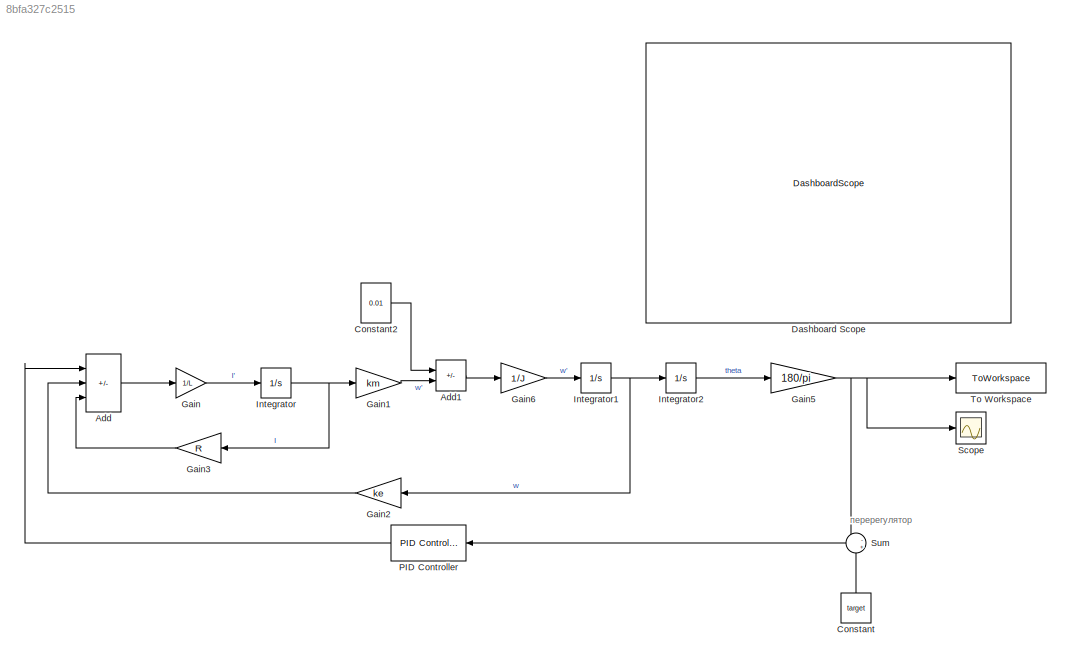
MODEL slx_8bfa327c2515
KIND model
CONFIG AbsTol = auto
CONFIG EnableMultiTasking = off
CONFIG FixedStep = auto
CONFIG MaxStep = auto
CONFIG MinStep = auto
CONFIG RelTol = 1e-3
CONFIG SampleTimeConstraint = Unconstrained
CONFIG SolverName = VariableStepAuto
CONFIG StartTime = 0.0
CONFIG StopTime = 20
BLOCK [Sum] Add
  IconShape = rectangular
  Inputs = +--
BLOCK [Sum] Add1
  IconShape = rectangular
  Inputs = -+
BLOCK [Constant] Constant
  NameLocation = right
  Value = target
BLOCK [Constant] Constant2
  Value = 0.01
BLOCK [DashboardScope] Dashboard Scope
BLOCK [Gain] Gain
  Gain = 1/L
BLOCK [Gain] Gain1
  Gain = km
BLOCK [Gain] Gain2
  Gain = ke
  NameLocation = top
BLOCK [Gain] Gain3
  Gain = R
  NameLocation = top
BLOCK [Gain] Gain5
  Gain = 180/pi
BLOCK [Gain] Gain6
  Gain = 1/J
BLOCK [Integrator] Integrator
BLOCK [Integrator] Integrator1
BLOCK [Integrator] Integrator2
BLOCK [Reference] PID Controller  REF=slpidlib/PID Controller
  LibrarySourceBlock = simulink/Continuous/PID Controller
  NameLocation = top
  SourceBlock = slpidlib/PID Controller
  SourceType = PID 1dof
BLOCK [Scope] Scope
  Floating = off
  NumInputPorts = 1
  ScopeSpecificationString = Simulink.scopes.TimeScopeBlockCfg('CurrentConfiguration', extmgr.ConfigurationSet(extmgr.Configuration('Core','General UI',true),extmgr.Configuration('Core','Source UI',true),extmgr.Configuration('Sources','WiredSimulink',true,'DataLoggingVariableName','simulinkPID','DataLoggingSaveFormat','Array'),extmgr.Configuration('Visuals','Time Domain',true,'SerializedDisplays',{struct('MinYLimReal','-52.80...<+1474ch>
BLOCK [Sum] Sum
  Inputs = -+
  NameLocation = top
BLOCK [ToWorkspace] To Workspace
  FixptAsFi = on
  MaxDataPoints = inf
  SampleTime = -1
  SaveFormat = Timeseries
  VariableName = simulinkPID
ANNOTATION (root): перерегулятор
LINE Add1:1 -> Gain6:1
LINE Add:1 -> Gain:1
LINE Constant2:1 -> Add1:1
LINE Constant:1 -> Sum:2
LINE Gain1:1 -> Add1:2
LINE Gain2:1 -> Add:2
LINE Gain3:1 -> Add:3
NET Gain5:1 -> Scope:1, Sum:1, To Workspace:1
LINE Gain6:1 -> Integrator1:1
LINE Gain:1 -> Integrator:1
NET Integrator1:1 -> Gain2:1, Integrator2:1
LINE Integrator2:1 -> Gain5:1
NET Integrator:1 -> Gain1:1, Gain3:1
LINE PID Controller:1 -> Add:1
LINE Sum:1 -> PID Controller:1
note: NET lines group one-source signal fan-out (src -> all destinations, sorted); 1:1 wires keep LINE
